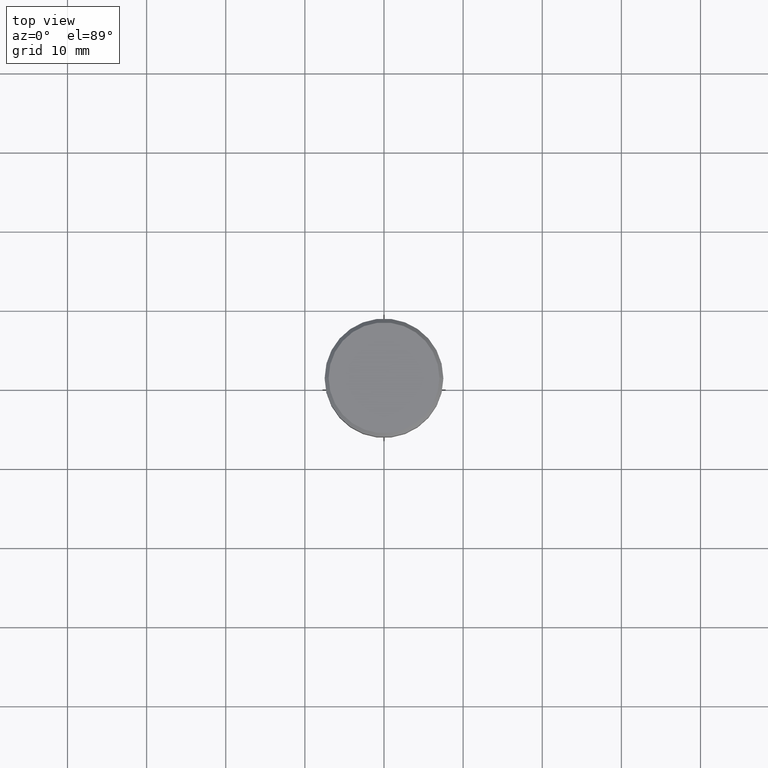
[diagram: clean part render]
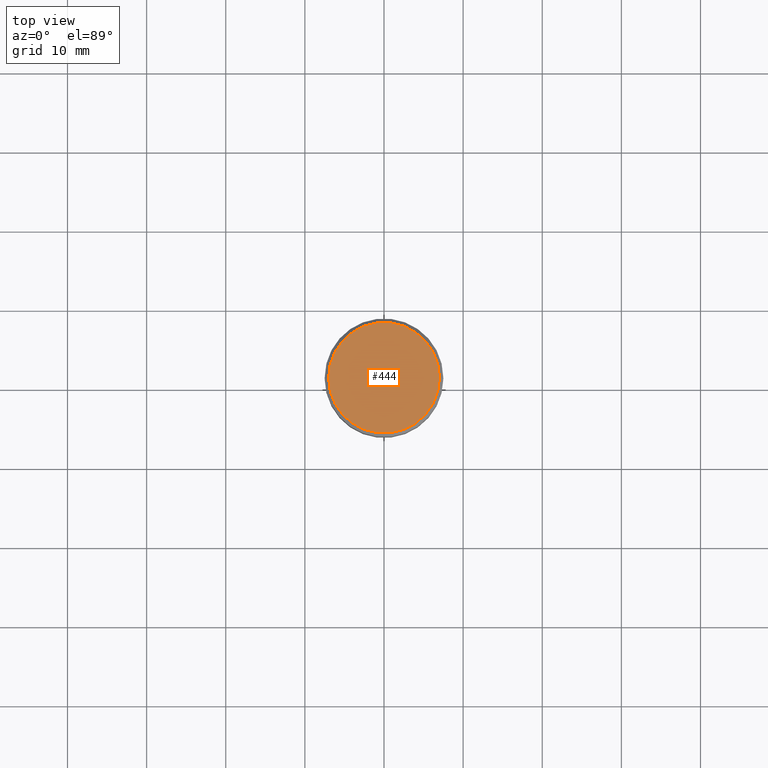
[diagram: same view with one face highlighted and labeled with its STEP entity id]
A machine part, top view. The second image highlights one B-rep face of the part: STEP entity #444.
In plain terms, the highlighted planar face has unit normal (0, -0, 1).
Its self-contained STEP definition (entity closure, byte-faithful):
#14 = DIRECTION ( 'NONE',  ( -0.000000000000000000, -0.000000000000000000, 1.000000000000000000 ) ) ;
#19 = DIRECTION ( 'NONE',  ( 0.000000000000000000, -0.000000000000000000, 1.000000000000000000 ) ) ;
#20 = EDGE_CURVE ( 'NONE', #470, #94, #200, .T. ) ;
#94 = VERTEX_POINT ( 'NONE', #249 ) ;
#112 = DIRECTION ( 'NONE',  ( 1.000000000000000000, 0.000000000000000000, 0.000000000000000000 ) ) ;
#114 = DIRECTION ( 'NONE',  ( -0.000000000000000000, -0.000000000000000000, 1.000000000000000000 ) ) ;
#115 = DIRECTION ( 'NONE',  ( 1.000000000000000000, 0.000000000000000000, 0.000000000000000000 ) ) ;
#153 = CARTESIAN_POINT ( 'NONE',  ( 0.000000000000000000, 0.000000000000000000, 0.000000000000000000 ) ) ;
#178 = CARTESIAN_POINT ( 'NONE',  ( 7.000000000000001776, 8.878689293818310074E-16, 0.000000000000000000 ) ) ;
#200 = CIRCLE ( 'NONE', #536, 7.000000000000001776 ) ;
#222 = FACE_OUTER_BOUND ( 'NONE', #318, .T. ) ;
#249 = CARTESIAN_POINT ( 'NONE',  ( -7.000000000000001776, 0.000000000000000000, 0.000000000000000000 ) ) ;
#295 = AXIS2_PLACEMENT_3D ( 'NONE', #153, #14, #377 ) ;
#311 = EDGE_CURVE ( 'NONE', #94, #470, #511, .T. ) ;
#318 = EDGE_LOOP ( 'NONE', ( #472, #563 ) ) ;
#345 = CARTESIAN_POINT ( 'NONE',  ( 0.000000000000000000, 0.000000000000000000, 0.000000000000000000 ) ) ;
#366 = AXIS2_PLACEMENT_3D ( 'NONE', #345, #19, #115 ) ;
#377 = DIRECTION ( 'NONE',  ( 1.000000000000000000, 0.000000000000000000, 0.000000000000000000 ) ) ;
#444 = ADVANCED_FACE ( 'NONE', ( #222 ), #573, .T. ) ;
#470 = VERTEX_POINT ( 'NONE', #178 ) ;
#472 = ORIENTED_EDGE ( 'NONE', *, *, #311, .T. ) ;
#511 = CIRCLE ( 'NONE', #295, 7.000000000000001776 ) ;
#531 = CARTESIAN_POINT ( 'NONE',  ( 0.000000000000000000, 0.000000000000000000, 0.000000000000000000 ) ) ;
#536 = AXIS2_PLACEMENT_3D ( 'NONE', #531, #114, #112 ) ;
#563 = ORIENTED_EDGE ( 'NONE', *, *, #20, .T. ) ;
#573 = PLANE ( 'NONE',  #366 ) ;